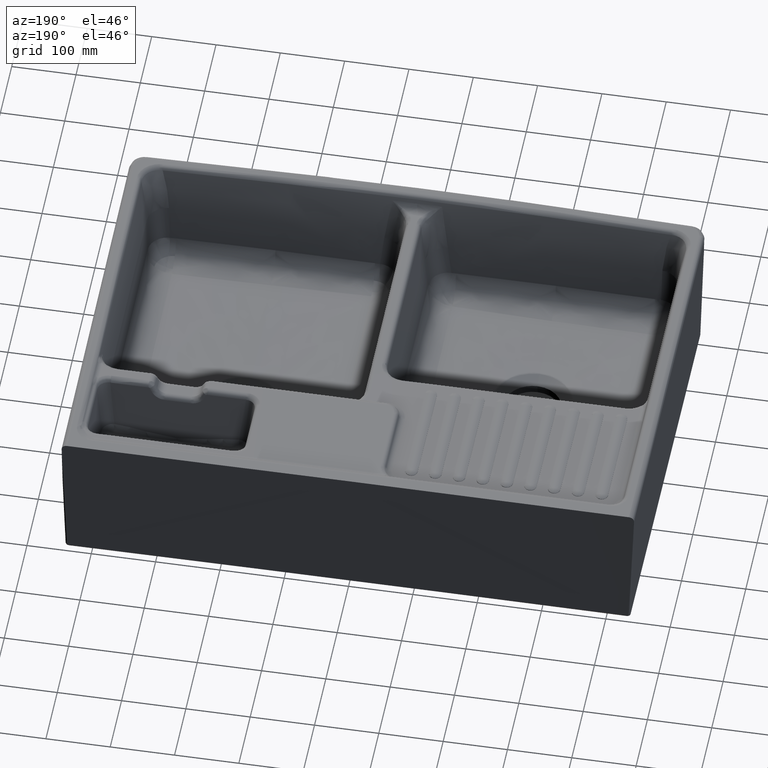
[diagram: clean part render]
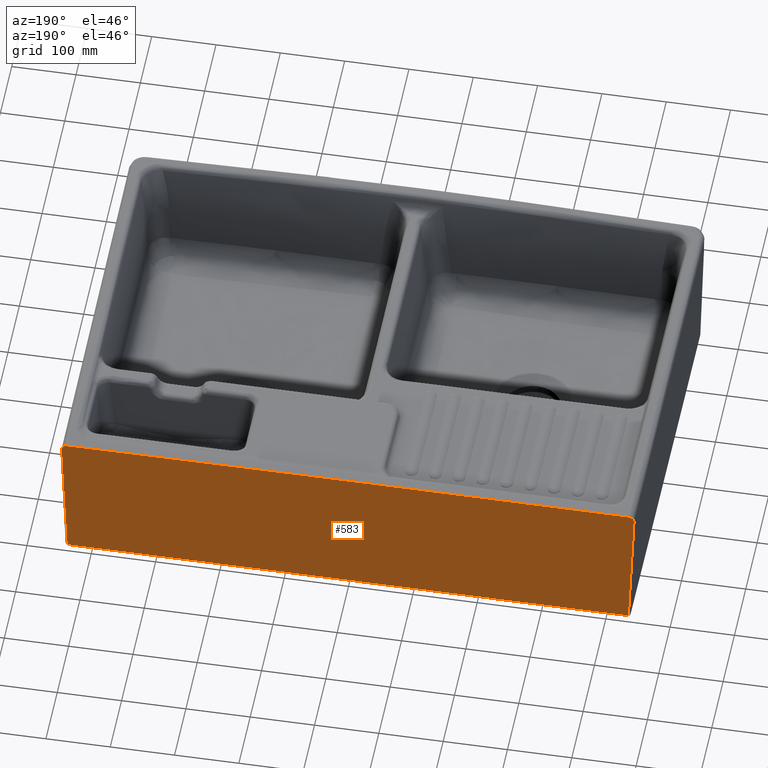
[diagram: same view with one face highlighted and labeled with its STEP entity id]
A machine part, auxiliary view. The second image highlights one B-rep face of the part: STEP entity #583.
In plain terms, the highlighted face is a freeform B-spline surface patch.
Its self-contained STEP definition (entity closure, byte-faithful):
#99=(
BOUNDED_SURFACE()
B_SPLINE_SURFACE(3,1,((#36824,#36825),(#36826,#36827),(#36828,#36829),(#36830,
#36831)),.UNSPECIFIED.,.F.,.F.,.F.)
B_SPLINE_SURFACE_WITH_KNOTS((4,4),(2,2),(0.,1.),(0.,1.),.UNSPECIFIED.)
GEOMETRIC_REPRESENTATION_ITEM()
RATIONAL_B_SPLINE_SURFACE(((1.00001101855024,1.00001101855024),(1.00000017489762,
1.00000017489762),(0.999996502047542,0.999996502047542),(1.,1.)))
REPRESENTATION_ITEM('')
SURFACE()
);
#102=(
BOUNDED_CURVE()
B_SPLINE_CURVE(3,(#36660,#36661,#36662,#36663),.UNSPECIFIED.,.F.,.F.)
B_SPLINE_CURVE_WITH_KNOTS((4,4),(0.,1.),.UNSPECIFIED.)
CURVE()
GEOMETRIC_REPRESENTATION_ITEM()
RATIONAL_B_SPLINE_CURVE((1.0000097808984,1.00000024168777,0.999996872773111,
0.999999674154432))
REPRESENTATION_ITEM('')
);
#103=(
BOUNDED_CURVE()
B_SPLINE_CURVE(3,(#36672,#36673,#36674,#36675),.UNSPECIFIED.,.F.,.F.)
B_SPLINE_CURVE_WITH_KNOTS((4,4),(0.,1.),.UNSPECIFIED.)
CURVE()
GEOMETRIC_REPRESENTATION_ITEM()
RATIONAL_B_SPLINE_CURVE((0.999999674154432,0.999999730512912,0.999999789368746,
0.999999850721935))
REPRESENTATION_ITEM('')
);
#104=(
BOUNDED_CURVE()
B_SPLINE_CURVE(3,(#36814,#36815,#36816,#36817),.UNSPECIFIED.,.F.,.F.)
B_SPLINE_CURVE_WITH_KNOTS((4,4),(0.,1.),.UNSPECIFIED.)
CURVE()
GEOMETRIC_REPRESENTATION_ITEM()
RATIONAL_B_SPLINE_CURVE((1.,1.00000166558466,1.00000495699276,1.00000987422432))
REPRESENTATION_ITEM('')
);
#105=(
BOUNDED_CURVE()
B_SPLINE_CURVE(3,(#36819,#36820,#36821,#36822),.UNSPECIFIED.,.F.,.F.)
B_SPLINE_CURVE_WITH_KNOTS((4,4),(0.,1.),.UNSPECIFIED.)
CURVE()
GEOMETRIC_REPRESENTATION_ITEM()
RATIONAL_B_SPLINE_CURVE((0.999999880692591,0.999998294654527,0.999998334423664,
1.))
REPRESENTATION_ITEM('')
);
#583=ADVANCED_FACE('',(#1439),#99,.F.);
#1439=FACE_OUTER_BOUND('',#1902,.T.);
#1902=EDGE_LOOP('',(#4168,#4169,#4170,#4171,#4172,#4173,#4174,#4175,#4176,
#4177));
#4168=ORIENTED_EDGE('',*,*,#6201,.T.);
#4169=ORIENTED_EDGE('',*,*,#6187,.T.);
#4170=ORIENTED_EDGE('',*,*,#6190,.T.);
#4171=ORIENTED_EDGE('',*,*,#6192,.T.);
#4172=ORIENTED_EDGE('',*,*,#6193,.T.);
#4173=ORIENTED_EDGE('',*,*,#6195,.T.);
#4174=ORIENTED_EDGE('',*,*,#6197,.T.);
#4175=ORIENTED_EDGE('',*,*,#6198,.T.);
#4176=ORIENTED_EDGE('',*,*,#6200,.T.);
#4177=ORIENTED_EDGE('',*,*,#6202,.T.);
#4993=VERTEX_POINT('',#35299);
#4999=VERTEX_POINT('',#35419);
#5020=VERTEX_POINT('',#36545);
#5021=VERTEX_POINT('',#36602);
#5022=VERTEX_POINT('',#36637);
#5023=VERTEX_POINT('',#36664);
#5024=VERTEX_POINT('',#36671);
#5025=VERTEX_POINT('',#36694);
#5026=VERTEX_POINT('',#36758);
#5027=VERTEX_POINT('',#36818);
#6187=EDGE_CURVE('',#5020,#4993,#7381,.T.);
#6190=EDGE_CURVE('',#4993,#5021,#7383,.T.);
#6192=EDGE_CURVE('',#5021,#5022,#7385,.T.);
#6193=EDGE_CURVE('',#5022,#5023,#102,.T.);
#6195=EDGE_CURVE('',#5023,#5024,#103,.T.);
#6197=EDGE_CURVE('',#5024,#5025,#7388,.T.);
#6198=EDGE_CURVE('',#5025,#4999,#7389,.T.);
#6200=EDGE_CURVE('',#4999,#5026,#7391,.T.);
#6201=EDGE_CURVE('',#5027,#5020,#104,.T.);
#6202=EDGE_CURVE('',#5026,#5027,#105,.T.);
#7381=B_SPLINE_CURVE_WITH_KNOTS('',3,(#36539,#36540,#36541,#36542,#36543,
#36544),.UNSPECIFIED.,.F.,.F.,(4,2,4),(0.,0.5,1.),.UNSPECIFIED.);
#7383=B_SPLINE_CURVE_WITH_KNOTS('',3,(#36603,#36604,#36605,#36606,#36607,
#36608,#36609,#36610,#36611,#36612,#36613,#36614,#36615,#36616,#36617,#36618),
 .UNSPECIFIED.,.F.,.F.,(4,1,1,1,1,1,1,1,1,2,2,4),(0.,0.249999999999998,
0.374999999999997,0.437499999999996,0.468749999999996,0.484374999999996,
0.492187499999996,0.496093749999996,0.498046874999996,0.499023437499996,
0.499999999999996,1.),.UNSPECIFIED.);
#7385=B_SPLINE_CURVE_WITH_KNOTS('',3,(#36638,#36639,#36640,#36641),
 .UNSPECIFIED.,.F.,.F.,(4,4),(0.,1.),.UNSPECIFIED.);
#7388=B_SPLINE_CURVE_WITH_KNOTS('',3,(#36695,#36696,#36697,#36698),
 .UNSPECIFIED.,.F.,.F.,(4,4),(0.,1.),.UNSPECIFIED.);
#7389=B_SPLINE_CURVE_WITH_KNOTS('',3,(#36717,#36718,#36719,#36720,#36721,
#36722,#36723,#36724,#36725,#36726,#36727,#36728,#36729,#36730,#36731,#36732,
#36733,#36734,#36735,#36736,#36737,#36738,#36739,#36740,#36741),
 .UNSPECIFIED.,.F.,.F.,(4,1,1,1,1,1,1,1,2,2,1,1,1,1,1,1,2,2,4),(0.,0.125000000000009,
0.187500000000014,0.218750000000016,0.234375000000017,0.242187500000018,
0.246093750000018,0.248046875000019,0.249023437500019,0.250000000000019,
0.37500000000001,0.437500000000006,0.468750000000003,0.484375000000002,
0.492187500000002,0.496093750000002,0.498046875000001,0.500000000000001,
1.),.UNSPECIFIED.);
#7391=B_SPLINE_CURVE_WITH_KNOTS('',3,(#36759,#36760,#36761,#36762,#36763,
#36764),.UNSPECIFIED.,.F.,.F.,(4,2,4),(0.,0.5,1.),.UNSPECIFIED.);
#35299=CARTESIAN_POINT('',(444.989944170265,305.998853498157,-8.07540970610167));
#35419=CARTESIAN_POINT('',(-444.989942244036,305.99880157533,-8.0756));
#36539=CARTESIAN_POINT('',(436.989207880957,305.963244478655,0.));
#36540=CARTESIAN_POINT('',(439.162055740619,305.972842179383,-0.0122852966427854));
#36541=CARTESIAN_POINT('',(441.164609891069,305.981764281913,-0.846487993366377));
#36542=CARTESIAN_POINT('',(444.182134778988,305.995266386242,-3.89211273005042));
#36543=CARTESIAN_POINT('',(445.010102450674,305.998998774114,-5.93208520707781));
#36544=CARTESIAN_POINT('',(444.989945273826,305.998908107558,-8.07524442501246));
#36545=CARTESIAN_POINT('',(436.987580775578,305.963027144631,0.));
#36602=CARTESIAN_POINT('',(436.21341844444,305.959791561111,-215.092591163409));
#36603=CARTESIAN_POINT('',(444.989943142603,305.998908097972,-8.07529894622284));
#36604=CARTESIAN_POINT('',(444.5223616087,305.996804926131,-23.065077642764));
#36605=CARTESIAN_POINT('',(443.671923339043,305.992984420597,-47.2480171327494));
#36606=CARTESIAN_POINT('',(442.41887980655,305.987375602063,-78.4334215667862));
#36607=CARTESIAN_POINT('',(441.727141635194,305.984285520138,-94.7691175410681));
#36608=CARTESIAN_POINT('',(441.364968445966,305.982669352994,-103.122713967525));
#36609=CARTESIAN_POINT('',(441.179805825167,305.981843526174,-107.345949290582));
#36610=CARTESIAN_POINT('',(441.086205508182,305.981426181851,-109.469176229568));
#36611=CARTESIAN_POINT('',(441.03915059804,305.981216402581,-110.533692018425));
#36612=CARTESIAN_POINT('',(441.015559455055,305.981111236247,-111.066675492695));
#36613=CARTESIAN_POINT('',(441.005435317794,305.981066105677,-111.295252463062));
#36614=CARTESIAN_POINT('',(440.998682860196,305.981036005456,-111.447671661395));
#36615=CARTESIAN_POINT('',(440.993421615709,305.981012552936,-111.566394745147));
#36616=CARTESIAN_POINT('',(440.226095582666,305.977592146127,-128.879088843331));
#36617=CARTESIAN_POINT('',(438.633263791706,305.970490515178,-163.376571848251));
#36618=CARTESIAN_POINT('',(436.213429550899,305.959820824721,-215.092591701618));
#36637=CARTESIAN_POINT('',(434.21565432342,305.951004663009,-217.));
#36638=CARTESIAN_POINT('',(436.213407078983,305.959820725636,-215.09259065523));
#36639=CARTESIAN_POINT('',(436.163941057151,305.959602616848,-216.160180672169));
#36640=CARTESIAN_POINT('',(435.300867412791,305.955795353186,-216.98419737785));
#36641=CARTESIAN_POINT('',(434.215654561848,305.951032276572,-217.));
#36660=CARTESIAN_POINT('',(434.215654561806,305.951032276572,-217.));
#36661=CARTESIAN_POINT('',(150.448914512084,304.705559812611,-217.));
#36662=CARTESIAN_POINT('',(-133.321035693447,304.680974177541,-217.));
#36663=CARTESIAN_POINT('',(-417.088943251773,305.877288165374,-217.));
#36664=CARTESIAN_POINT('',(-417.088943251773,305.877288165374,-217.));
#36671=CARTESIAN_POINT('',(-434.215531591977,305.950974582349,-216.999999998925));
#36672=CARTESIAN_POINT('',(-417.088943251773,305.877288165374,-217.));
#36673=CARTESIAN_POINT('',(-422.797799172492,305.901355665647,-217.));
#36674=CARTESIAN_POINT('',(-428.506652820623,305.925917304644,-217.));
#36675=CARTESIAN_POINT('',(-434.215504153396,305.950973082096,-217.));
#36694=CARTESIAN_POINT('',(-436.21344083833,305.959764413582,-215.092028415153));
#36695=CARTESIAN_POINT('',(-434.215559077135,305.950973323153,-216.999999997849));
#36696=CARTESIAN_POINT('',(-435.301482711581,305.955739372007,-216.98427818991));
#36697=CARTESIAN_POINT('',(-436.164314400438,305.959545465964,-216.159368001516));
#36698=CARTESIAN_POINT('',(-436.213437804504,305.959762057453,-215.091930873762));
#36717=CARTESIAN_POINT('',(-436.213460381509,305.959762156998,-215.091931916338));
#36718=CARTESIAN_POINT('',(-436.346350668165,305.960348087616,-212.223950346456));
#36719=CARTESIAN_POINT('',(-436.748177017699,305.96211977962,-203.60486768766));
#36720=CARTESIAN_POINT('',(-437.571333486841,305.965757860051,-185.994328220444));
#36721=CARTESIAN_POINT('',(-438.071501475348,305.96797174549,-175.300322728848));
#36722=CARTESIAN_POINT('',(-438.343732906506,305.969177685312,-169.481136043553));
#36723=CARTESIAN_POINT('',(-438.485385481094,305.969805443542,-166.453496716031));
#36724=CARTESIAN_POINT('',(-438.557595983112,305.970125524825,-164.910165556052));
#36725=CARTESIAN_POINT('',(-438.594047287799,305.970287116658,-164.131122102007));
#36726=CARTESIAN_POINT('',(-438.609743429881,305.970356702769,-163.795665362977));
#36727=CARTESIAN_POINT('',(-438.620224003349,305.970403167399,-163.57167620962));
#36728=CARTESIAN_POINT('',(-438.627088319314,305.970433600368,-163.424973827228));
#36729=CARTESIAN_POINT('',(-439.096774174613,305.972515982896,-153.386998533386));
#36730=CARTESIAN_POINT('',(-439.741606748144,305.975379799735,-139.448466228118));
#36731=CARTESIAN_POINT('',(-440.399000632142,305.97830501266,-124.93983769226));
#36732=CARTESIAN_POINT('',(-440.703969880028,305.979663249439,-118.123771546069));
#36733=CARTESIAN_POINT('',(-440.850522580704,305.980316228236,-114.825300503408));
#36734=CARTESIAN_POINT('',(-440.922315950257,305.980636177078,-113.203455489686));
#36735=CARTESIAN_POINT('',(-440.95784188984,305.980794515667,-112.399380609727));
#36736=CARTESIAN_POINT('',(-440.972987847121,305.980862024454,-112.056244438367));
#36737=CARTESIAN_POINT('',(-440.983067497442,305.98090695239,-111.827813068265));
#36738=CARTESIAN_POINT('',(-440.986289846956,305.98092131545,-111.754775805453));
#36739=CARTESIAN_POINT('',(-442.741810332073,305.988746449274,-71.944193097167));
#36740=CARTESIAN_POINT('',(-444.074084514514,305.994728721912,-37.4360016073778));
#36741=CARTESIAN_POINT('',(-444.989943493535,305.998848112749,-8.07529634500336));
#36758=CARTESIAN_POINT('',(-436.986844031514,305.96241622115,0.));
#36759=CARTESIAN_POINT('',(-444.989944959203,305.998848119341,-8.07529637476127));
#36760=CARTESIAN_POINT('',(-445.010115255934,305.99893884219,-5.9320662787514));
#36761=CARTESIAN_POINT('',(-444.181119132789,305.995201959175,-3.89090539881555));
#36762=CARTESIAN_POINT('',(-441.165005138194,305.98170658403,-0.847077571729639));
#36763=CARTESIAN_POINT('',(-439.161760039048,305.972781649582,-0.012000327982764));
#36764=CARTESIAN_POINT('',(-436.988181776984,305.963181038148,7.99382425771074E-18));
#36814=CARTESIAN_POINT('',(5.55111512312578E-14,304.998120491362,0.));
#36815=CARTESIAN_POINT('',(145.66283170446,304.998130309277,0.));
#36816=CARTESIAN_POINT('',(291.32506843981,305.319835163352,0.));
#36817=CARTESIAN_POINT('',(436.9859997557,305.963230308076,0.));
#36818=CARTESIAN_POINT('',(0.,304.99812,0.));
#36819=CARTESIAN_POINT('',(-436.986000015895,305.963171401417,0.));
#36820=CARTESIAN_POINT('',(-291.324825958912,305.319794820364,0.));
#36821=CARTESIAN_POINT('',(-145.662589134858,304.998110673463,0.));
#36822=CARTESIAN_POINT('',(0.,304.998120491362,0.));
#36824=CARTESIAN_POINT('',(470.056147548638,306.114830891531,0.));
#36825=CARTESIAN_POINT('',(470.056147548638,306.114830891531,-283.792626080965));
#36826=CARTESIAN_POINT('',(164.147549081006,304.661351782081,0.));
#36827=CARTESIAN_POINT('',(164.147549081006,304.661351782081,-283.792626080965));
#36828=CARTESIAN_POINT('',(-141.765062189952,304.626723356259,0.));
#36829=CARTESIAN_POINT('',(-141.765062189952,304.626723356259,-283.792626080965));
#36830=CARTESIAN_POINT('',(-447.675105391667,306.010961992328,0.));
#36831=CARTESIAN_POINT('',(-447.675105391667,306.010961992328,-283.792626080965));